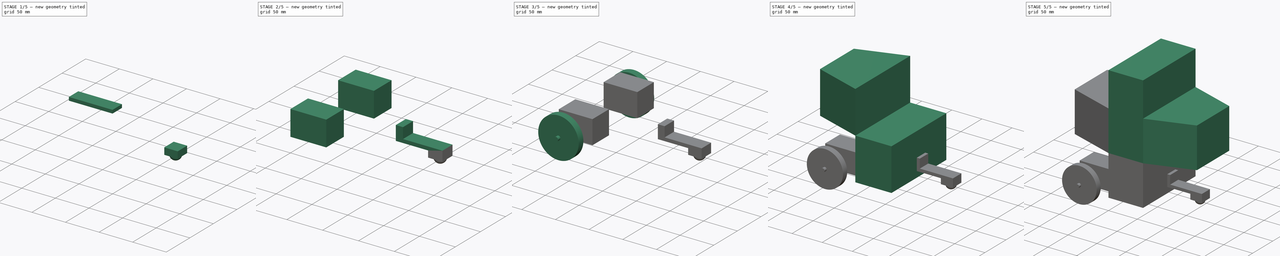
[diagram: build sequence overview — one tinted view per stage of 5, left to right]
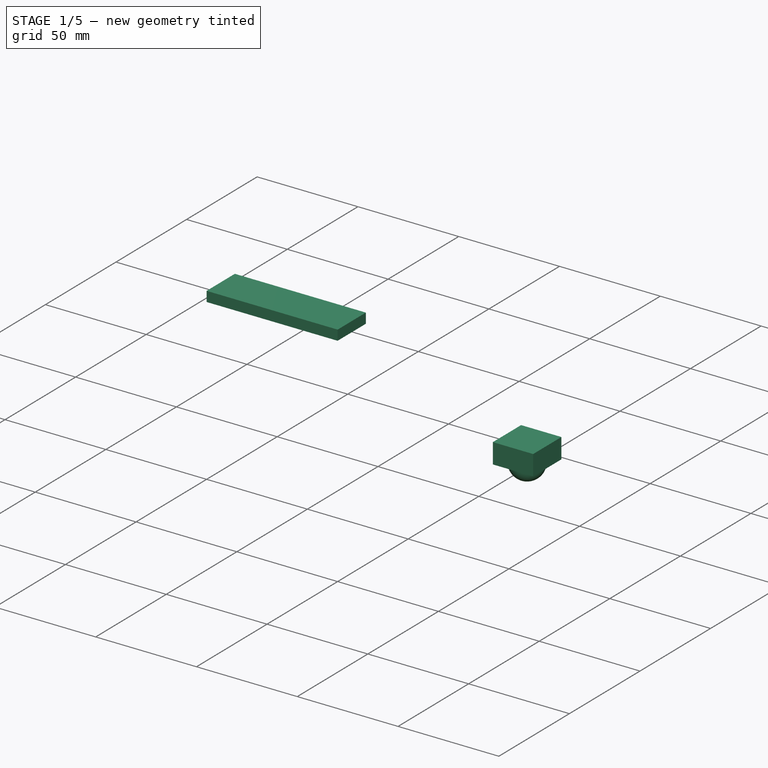
[diagram: stage 1 of 5 — iso view after this stage's code; geometry added in this stage tinted green]
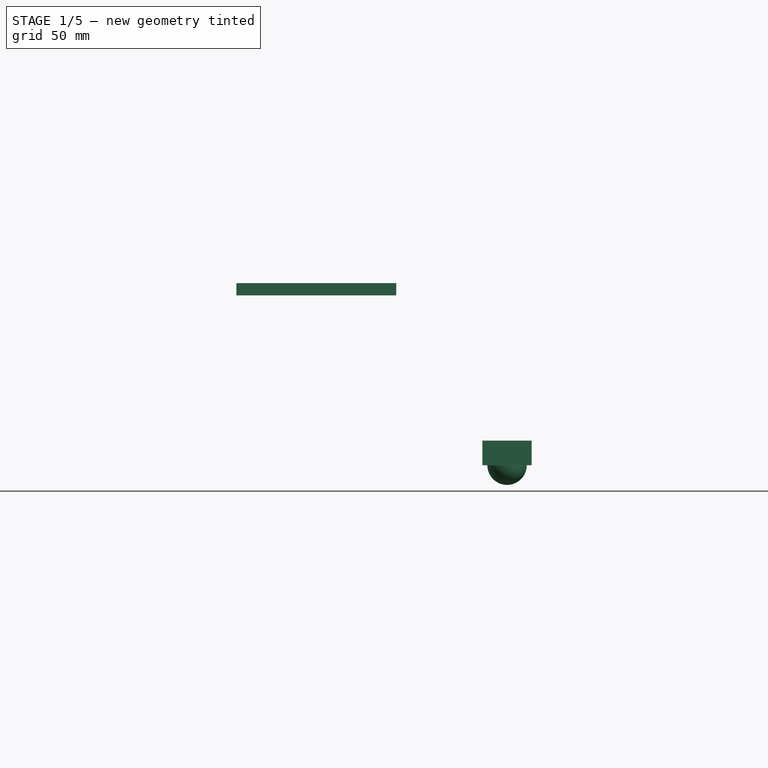
[diagram: stage 1 of 5 — front view after this stage's code; geometry added in this stage tinted green]
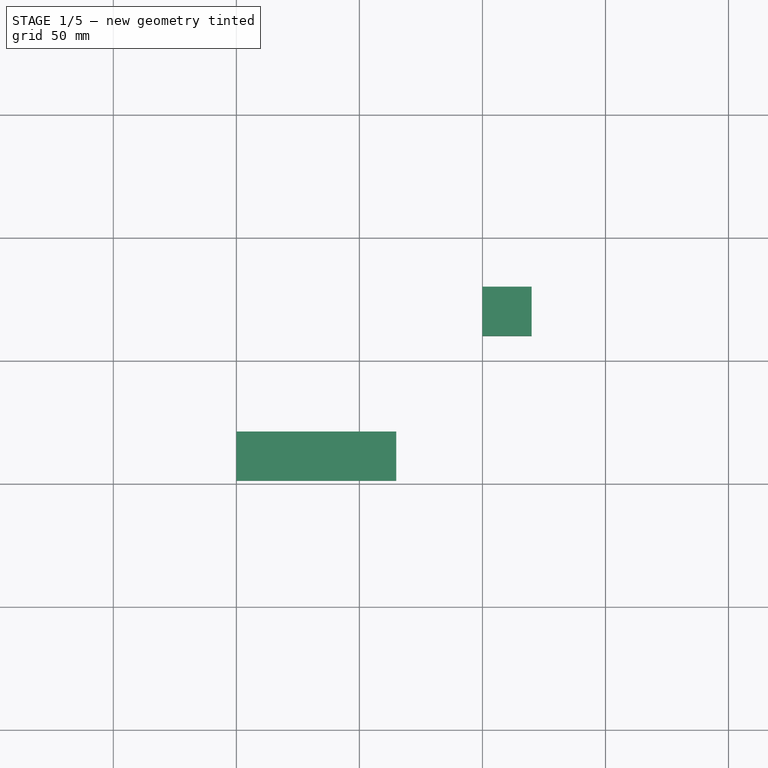
[diagram: stage 1 of 5 — top view after this stage's code; geometry added in this stage tinted green]
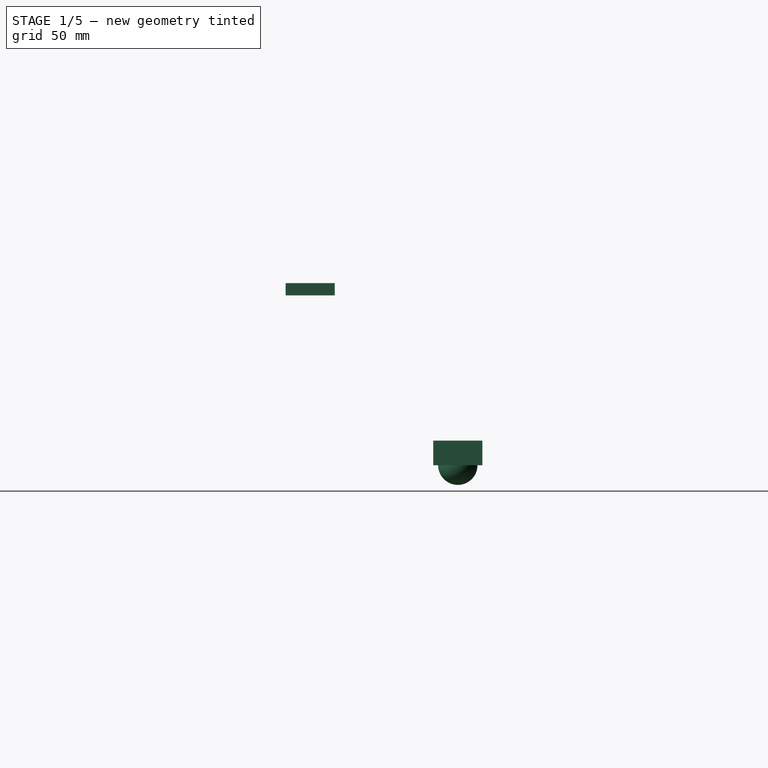
[diagram: stage 1 of 5 — right view after this stage's code; geometry added in this stage tinted green]
FCSTD DOCUMENT  (FreeCAD 0.16R6712 (Git))
Label: General
License: All rights reserved
LicenseURL: http://en.wikipedia.org/wiki/All_rights_reserved
objects: Part::MultiFuse×8, Part::Box×7, Part::Cylinder×2, Part::FeaturePython×2, Sketcher::SketchObject×1, PartDesign::Pad×1, Part::Mirroring×1, Part::Sphere×1
note: 24 computed .brp shape members not serialized (recipe doc carries the construction recipe); baked Part::Feature solids carry a one-line shape summary decoded from their .brp

FEATURE [Part::Box] Box004  label="Cubo001"
  Height = 5
  Length = 65
  Width = 20
FEATURE [Part::Box] Box006  label="Cubo003"
  Height = 10
  Length = 20
  Width = 20
FEATURE [Part::Sphere] Sphere  label="Esfera"
  Angle1 = -90
  Angle2 = 90
  Angle3 = 360
  Placement = pos=(10,10,0) rot=(0,0,1;0rad)
  Radius = 8
FEATURE [Part::MultiFuse] Fusion005
  Placement = pos=(100,60,-69) rot=(0,0,1;0rad)
  Shapes = -> [Box006,Sphere]
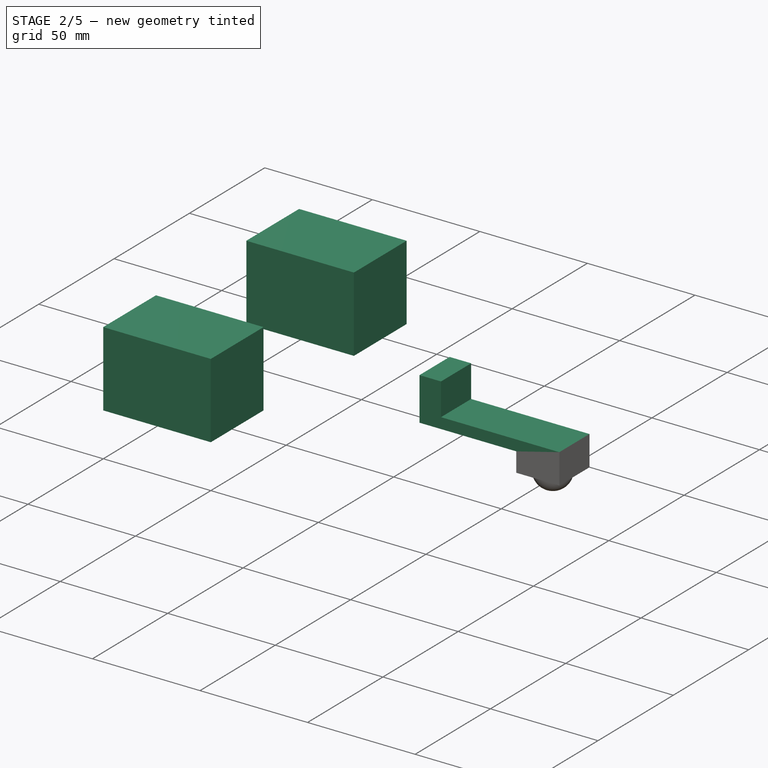
[diagram: stage 2 of 5 — iso view after this stage's code; geometry added in this stage tinted green]
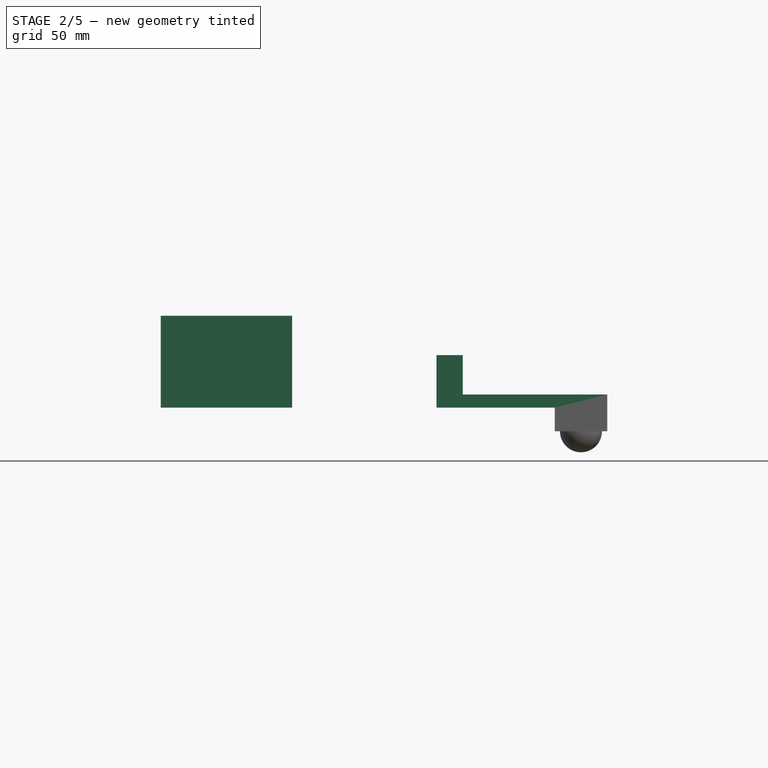
[diagram: stage 2 of 5 — front view after this stage's code; geometry added in this stage tinted green]
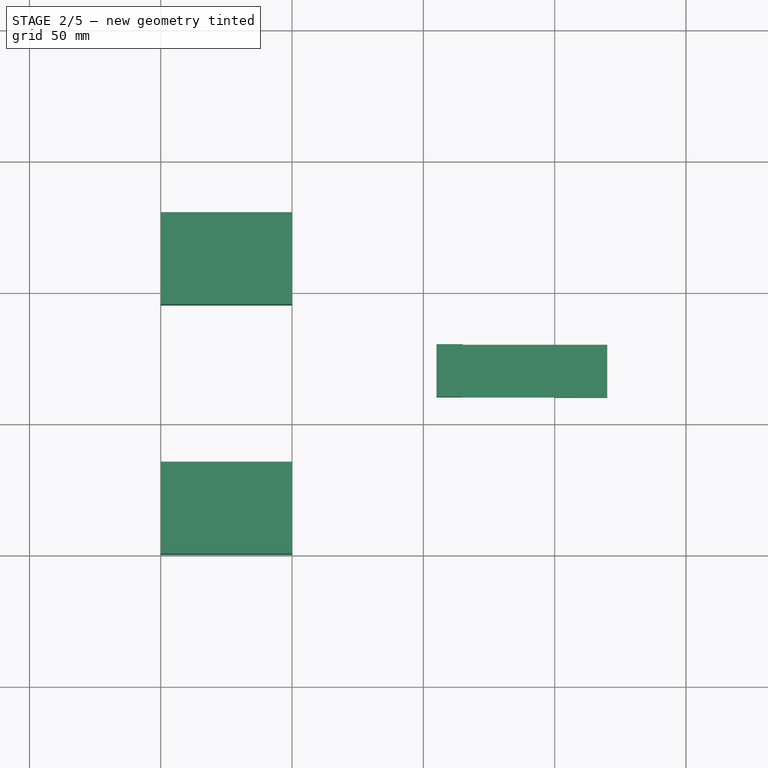
[diagram: stage 2 of 5 — top view after this stage's code; geometry added in this stage tinted green]
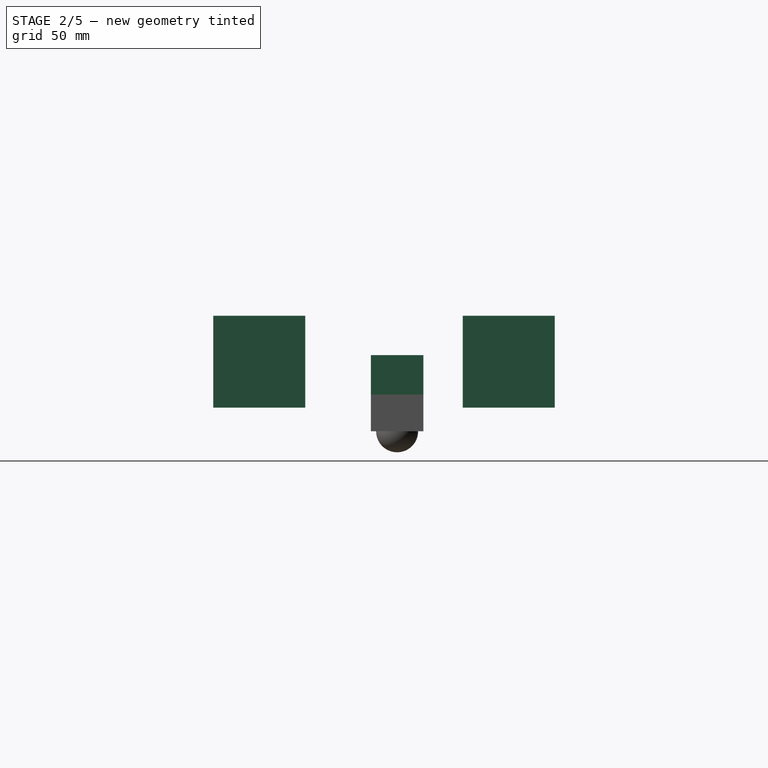
[diagram: stage 2 of 5 — right view after this stage's code; geometry added in this stage tinted green]
FEATURE [Part::Box] Box003  label="Cubo"
  Height = 20
  Length = 10
  Width = 20
FEATURE [Part::MultiFuse] Fusion001  label="L2"
  Placement = pos=(55,60,-60) rot=(0,0,1;0rad)
  Shapes = -> [Box003,Box004]
FEATURE [Part::Box] Box005  label="Cubo002"
  Height = 35
  Length = 50
  Width = 35
FEATURE [Part::FeaturePython] Array001  label="L4"  # Draft array (typed FeaturePython)
  Angle = 360
  ArrayType = 0
  Axis = (0,0,1)
  Base = -> Box005
  Center = (0,0,0)
  Fuse = false
  IntervalAxis = (0,0,0)
  IntervalX = (0,0,0)
  IntervalY = (0,95,0)
  IntervalZ = (0,0,0)
  NumberPolar = 1
  NumberX = 1
  NumberY = 2
  NumberZ = 1
  Placement = pos=(-50,0,-60) rot=(0,0,1;0rad)
FEATURE [Part::MultiFuse] Fusion006
  Shapes = -> [Fusion005,Fusion001]
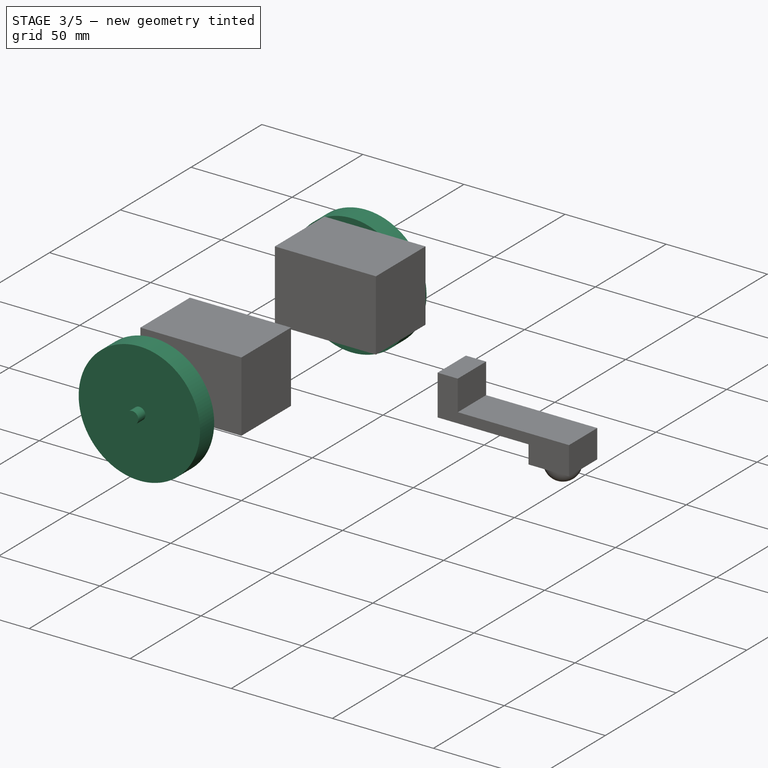
[diagram: stage 3 of 5 — iso view after this stage's code; geometry added in this stage tinted green]
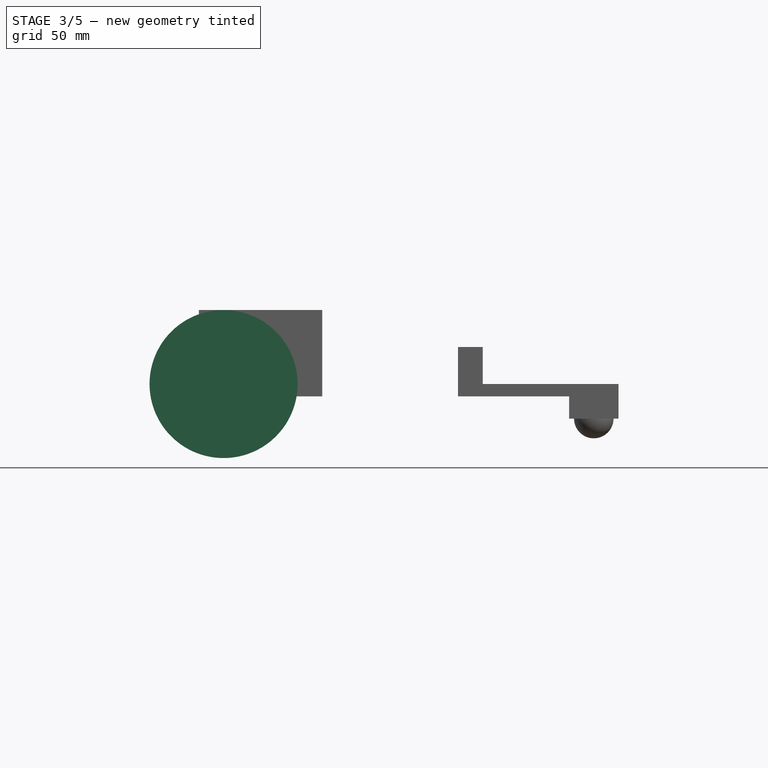
[diagram: stage 3 of 5 — front view after this stage's code; geometry added in this stage tinted green]
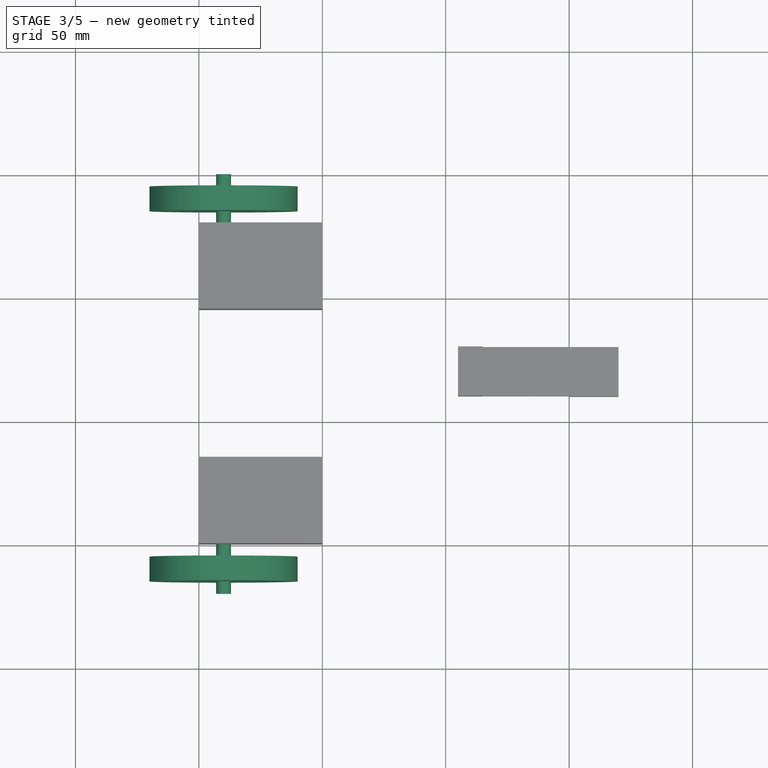
[diagram: stage 3 of 5 — top view after this stage's code; geometry added in this stage tinted green]
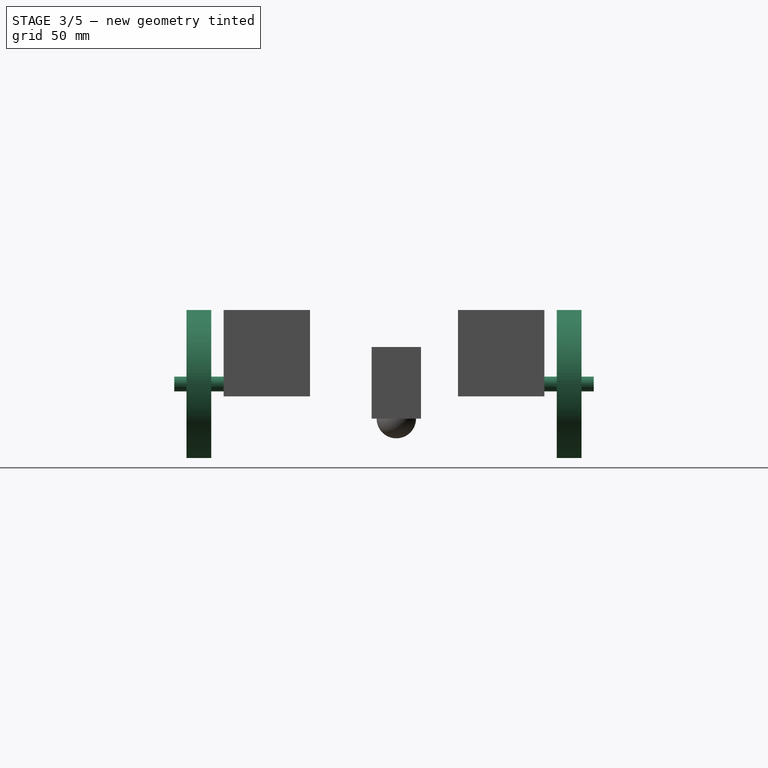
[diagram: stage 3 of 5 — right view after this stage's code; geometry added in this stage tinted green]
FEATURE [Part::Cylinder] Cylinder  label="Cilindro"
  Angle = 360
  Height = 20
  Placement = pos=(0,0,-5) rot=(0,0,1;0rad)
  Radius = 3
FEATURE [Part::Cylinder] Cylinder001  label="Cilindro001"
  Angle = 360
  Height = 10
  Radius = 30
FEATURE [Part::MultiFuse] Fusion002
  Shapes = -> [Cylinder,Cylinder001]
FEATURE [Part::FeaturePython] Array  label="L3"  # Draft array (typed FeaturePython)
  Angle = 360
  ArrayType = 0
  Axis = (0,0,1)
  Base = -> Fusion002
  Center = (0,0,0)
  Fuse = false
  IntervalAxis = (0,0,0)
  IntervalX = (0,0,150)
  IntervalY = (0,0,0)
  IntervalZ = (0,0,0)
  NumberPolar = 1
  NumberX = 2
  NumberY = 1
  NumberZ = 1
  Placement = pos=(-40,-15,-55) rot=(-1,0,0;1.5708rad)
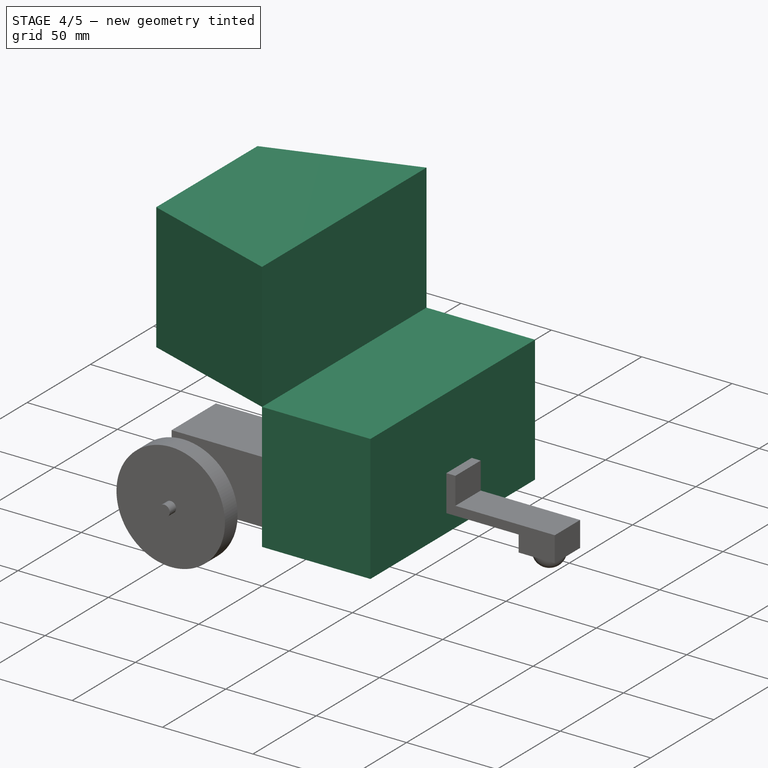
[diagram: stage 4 of 5 — iso view after this stage's code; geometry added in this stage tinted green]
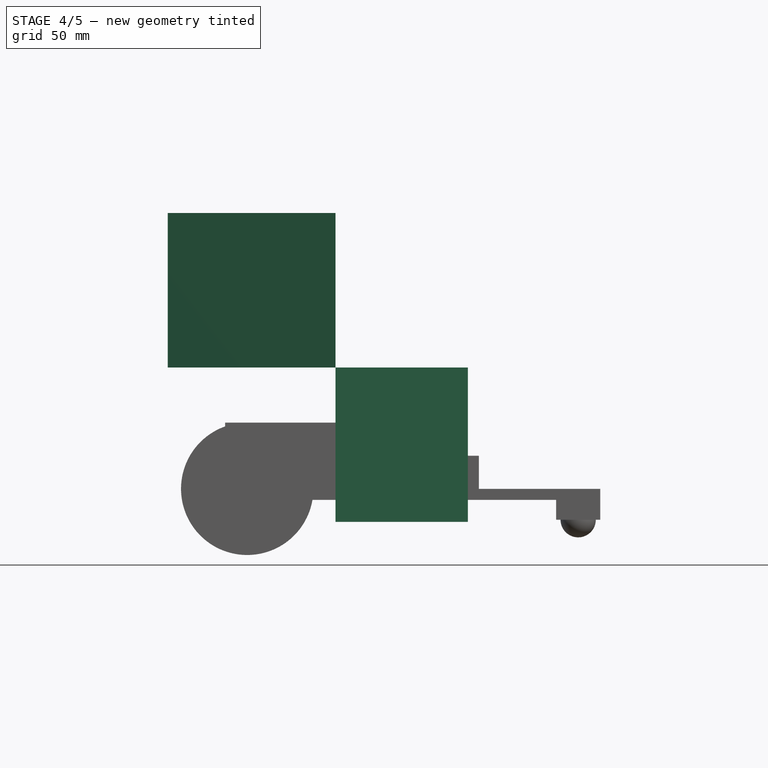
[diagram: stage 4 of 5 — front view after this stage's code; geometry added in this stage tinted green]
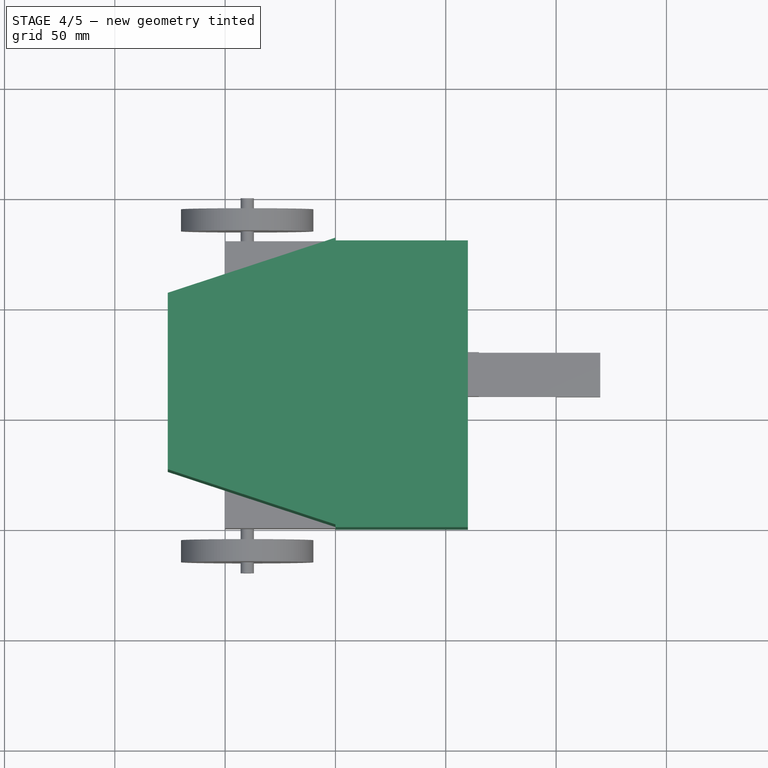
[diagram: stage 4 of 5 — top view after this stage's code; geometry added in this stage tinted green]
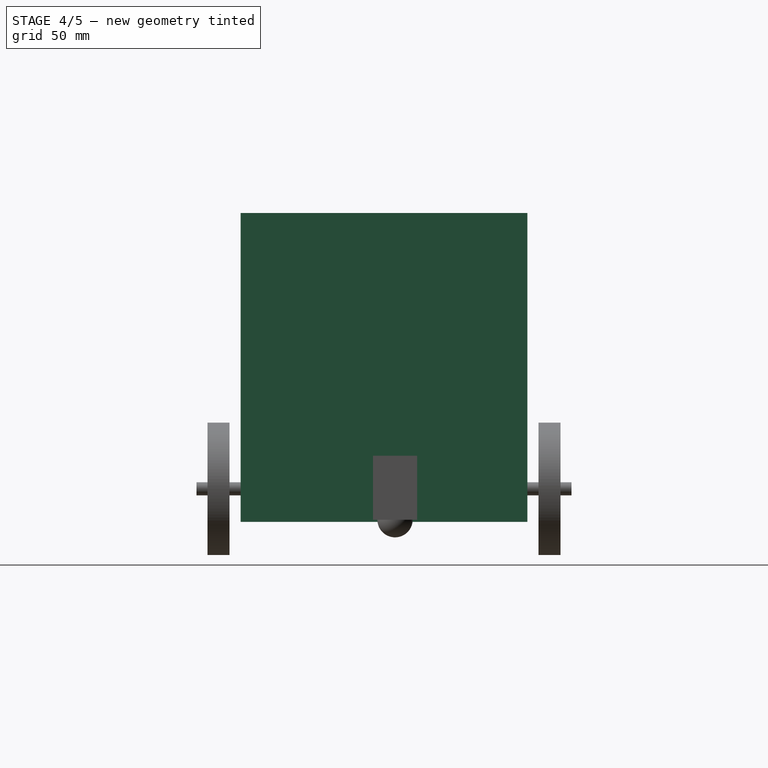
[diagram: stage 4 of 5 — right view after this stage's code; geometry added in this stage tinted green]
FEATURE [Part::Box] Box002  label="L1"
  Height = 70
  Length = 60
  Placement = pos=(0,0,-70) rot=(0,0,1;0rad)
  Width = 130
FEATURE [Sketcher::SketchObject] Sketch
  sketch-geometry (7):
    g0: LineSegment StartX=0 StartY=130 StartZ=0 EndX=0 EndY=0 EndZ=0
    g1: LineSegment [constr] StartX=-76 StartY=105 StartZ=0 EndX=0 EndY=105 EndZ=0
    g2: LineSegment [constr] StartX=0 StartY=105 StartZ=0 EndX=0 EndY=25 EndZ=0
    g3: LineSegment [constr] StartX=0 StartY=25 StartZ=0 EndX=-76 EndY=25 EndZ=0
    g4: LineSegment StartX=-76 StartY=25 StartZ=0 EndX=-76 EndY=105 EndZ=0
    g5: LineSegment StartX=-76 StartY=25 StartZ=0 EndX=0 EndY=0 EndZ=0
    g6: LineSegment StartX=0 StartY=130 StartZ=0 EndX=-76 EndY=105 EndZ=0
  constraints (19):
    c: Vertical(g0)
    c: DistanceY(g0,g0) = 130
    c: Coincident(g1,g2)
    c: Coincident(g2,g3)
    c: Coincident(g3,g4)
    c: Coincident(g4,g1)
    c: Horizontal(g1)
    c: Horizontal(g3)
    c: Vertical(g2)
    c: Vertical(g4)
    c: PointOnObject(g1,g0)
    c: DistanceY(g1,g0) = 25
    c: DistanceY(g2,g1) = 80
    c: DistanceX(g1,g1) = 76
    c: Coincident(g5,g0)
    c: Coincident(g5,g3)
    c: Coincident(g1,g6)
    c: Coincident(g6,g0)
    c: Coincident(g0,g-1)
FEATURE [PartDesign::Pad] Pad  label="ComunicacionA"
  Length = 70
  Length2 = 100
  Sketch = -> Sketch
  Type = 0
FEATURE [Part::MultiFuse] Fusion003
  Shapes = -> [Array,Array001]
FEATURE [Part::MultiFuse] Fusion004
  Shapes = -> [Box002,Fusion003]
FEATURE [Part::MultiFuse] Fusion007  label="Locomocion"
  Shapes = -> [Fusion004,Fusion006]
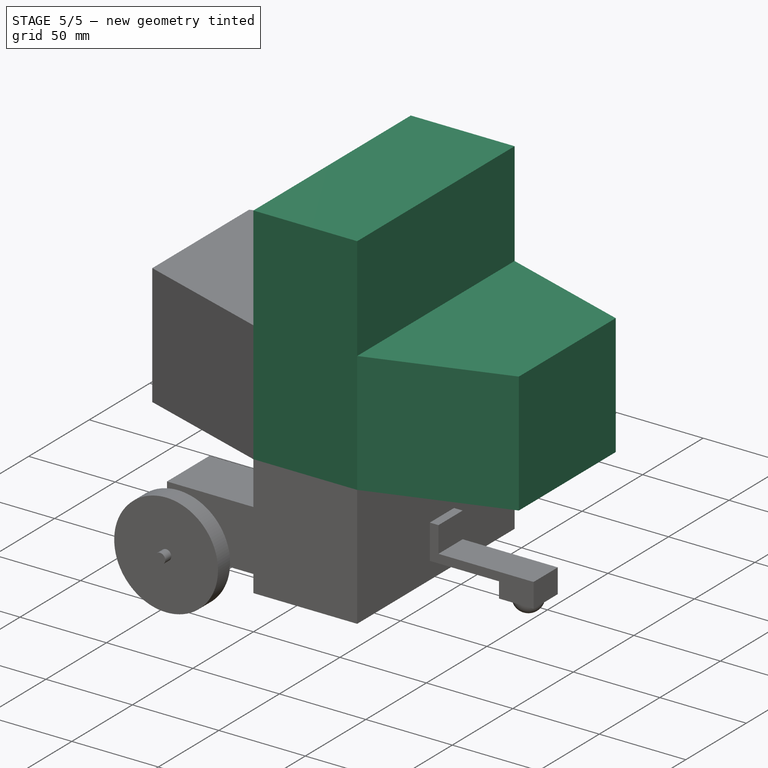
[diagram: stage 5 of 5 — iso view after this stage's code; geometry added in this stage tinted green]
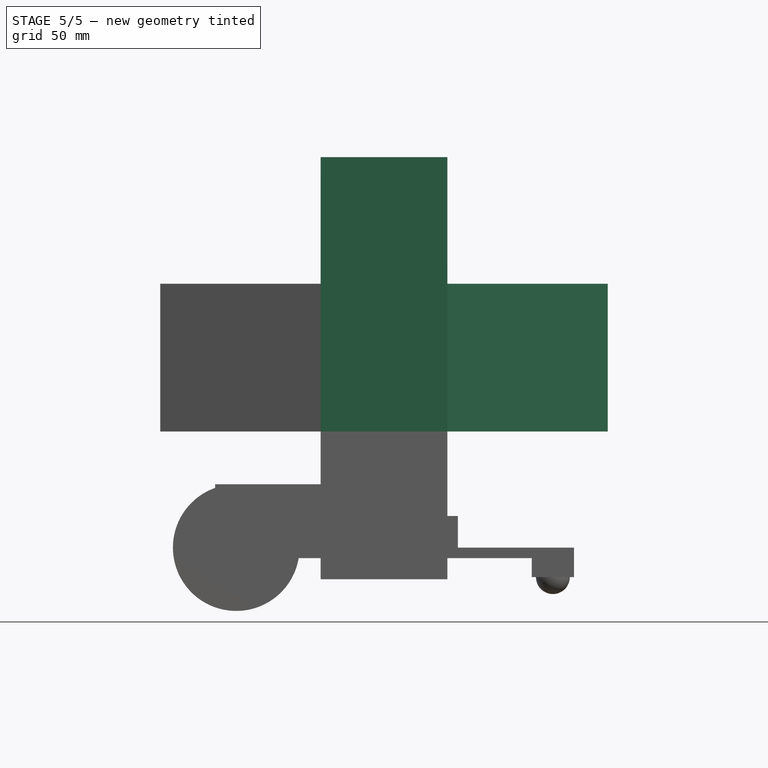
[diagram: stage 5 of 5 — front view after this stage's code; geometry added in this stage tinted green]
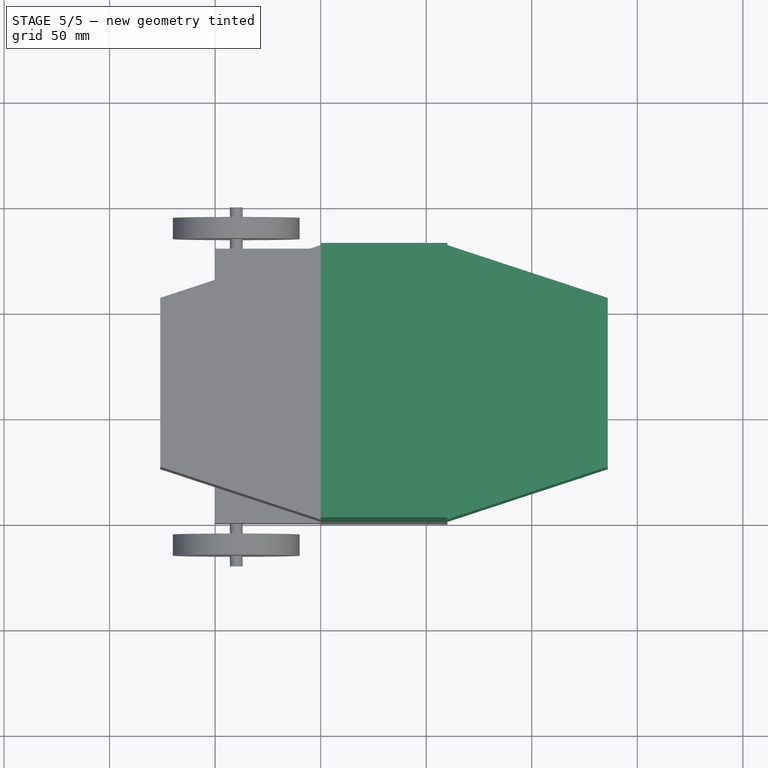
[diagram: stage 5 of 5 — top view after this stage's code; geometry added in this stage tinted green]
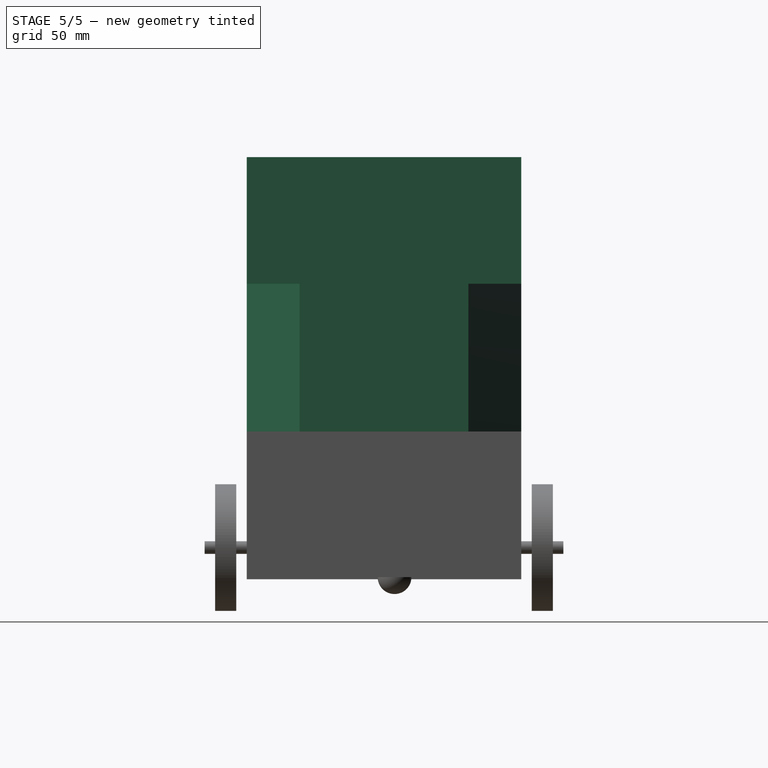
[diagram: stage 5 of 5 — right view after this stage's code; geometry added in this stage tinted green]
FEATURE [Part::Box] Box  label="Control"
  Height = 70
  Length = 60
  Width = 130
FEATURE [Part::Box] Box001  label="Alimentacion"
  Height = 60
  Length = 60
  Placement = pos=(0,0,70) rot=(0,0,1;0rad)
  Width = 130
FEATURE [Part::Mirroring] Part__Mirroring  label="ComunicacionB"
  Base = (0,0,0)
  Normal = (1,0,0)
  Placement = pos=(60,0,0) rot=(0,0,1;0rad)
  Source = -> Pad
FEATURE [Part::MultiFuse] Fusion  label="Comunicacion"
  Shapes = -> [Pad,Part__Mirroring]
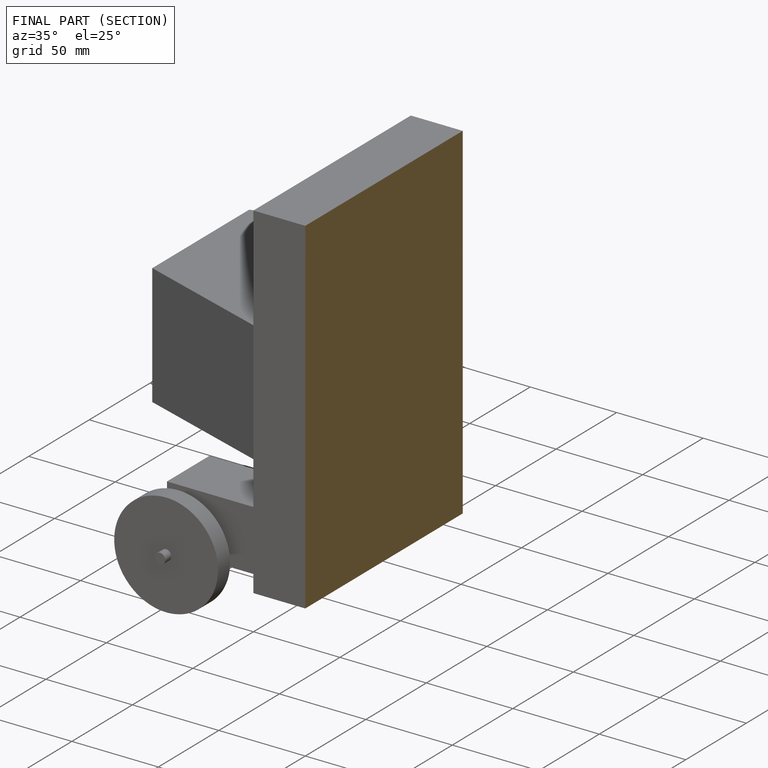
[diagram: finished part — half-section view (interior)]
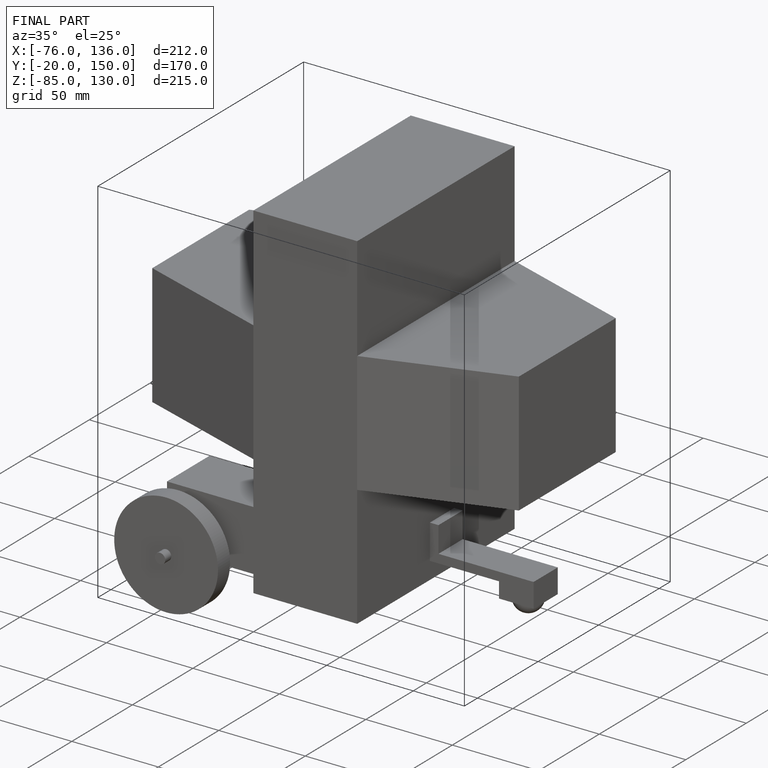
[diagram: finished part — iso view with bounding-box wireframe]
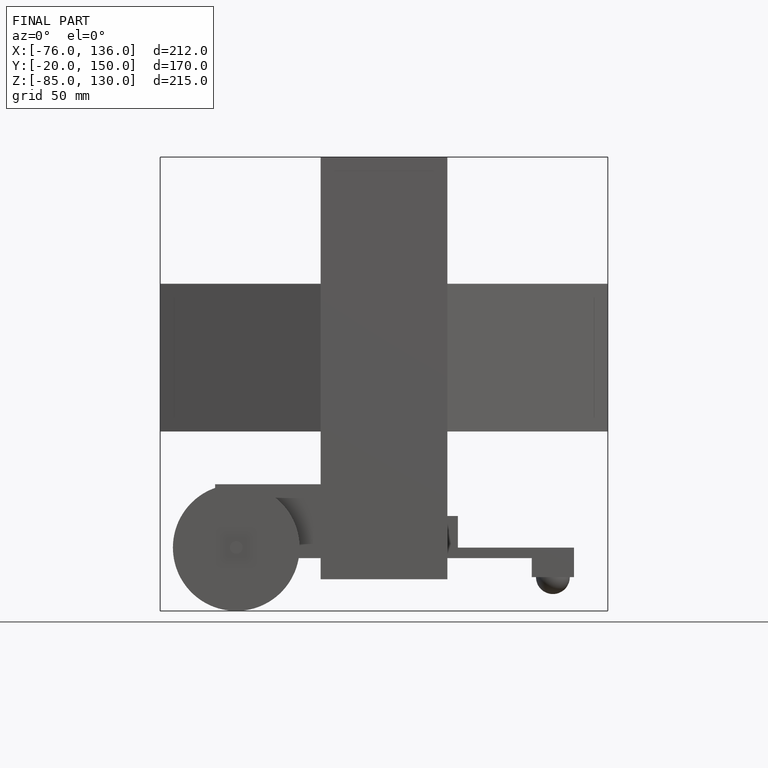
[diagram: finished part — front view with bounding-box wireframe]
